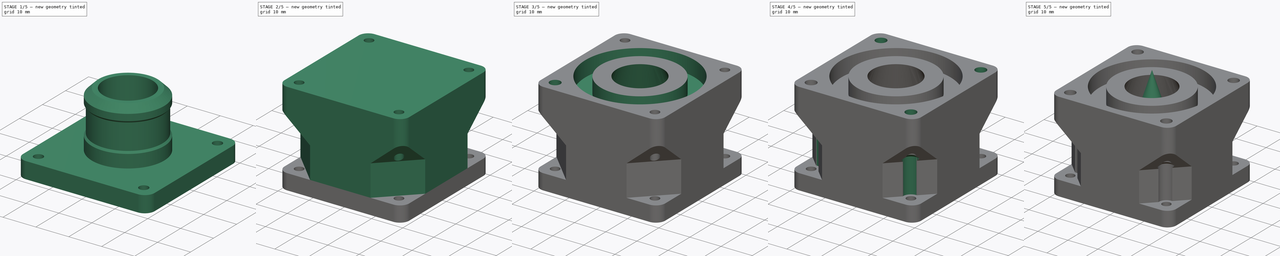
[diagram: build sequence overview — one tinted view per stage of 5, left to right]
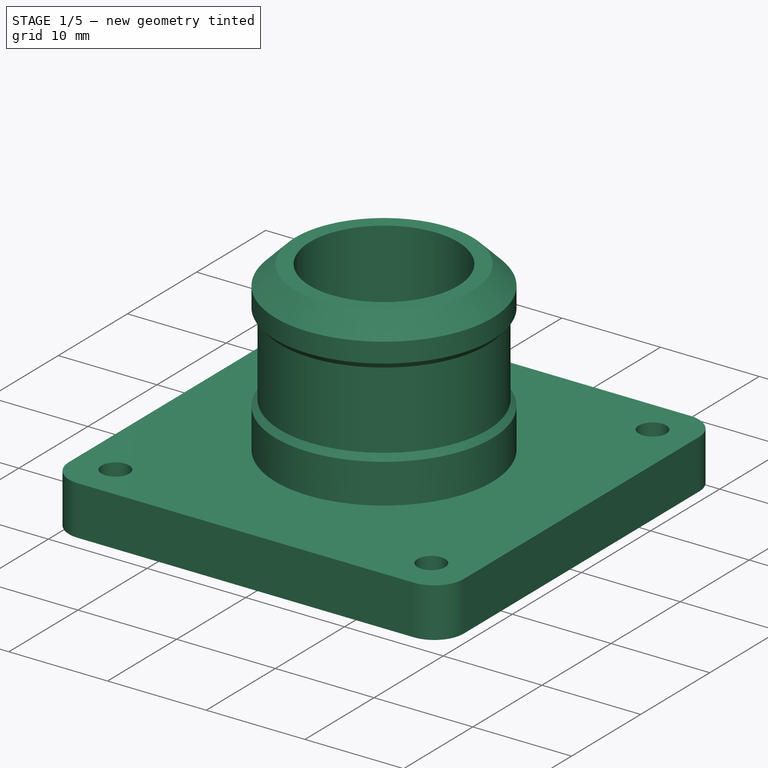
[diagram: stage 1 of 5 — iso view after this stage's code; geometry added in this stage tinted green]
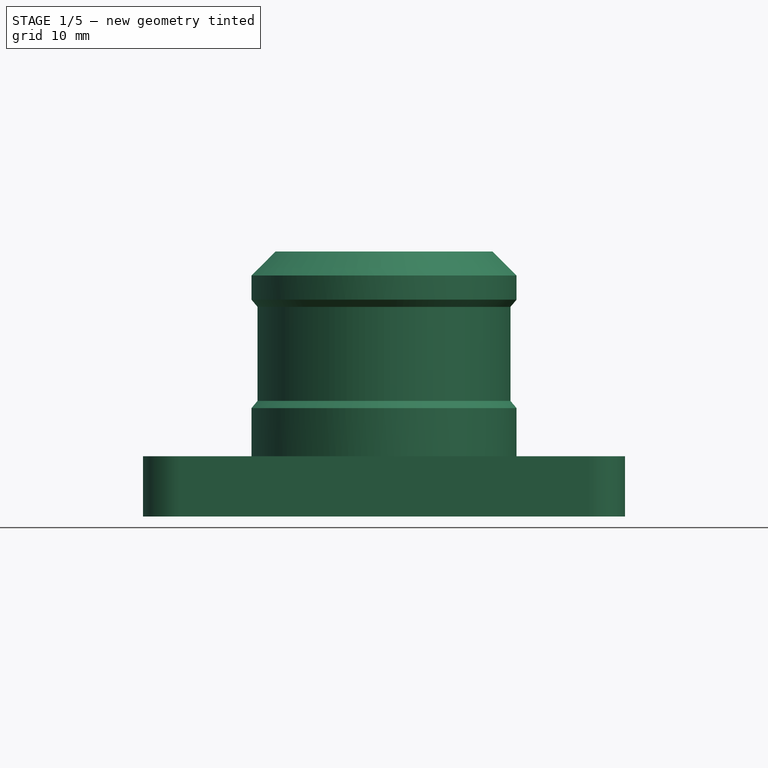
[diagram: stage 1 of 5 — front view after this stage's code; geometry added in this stage tinted green]
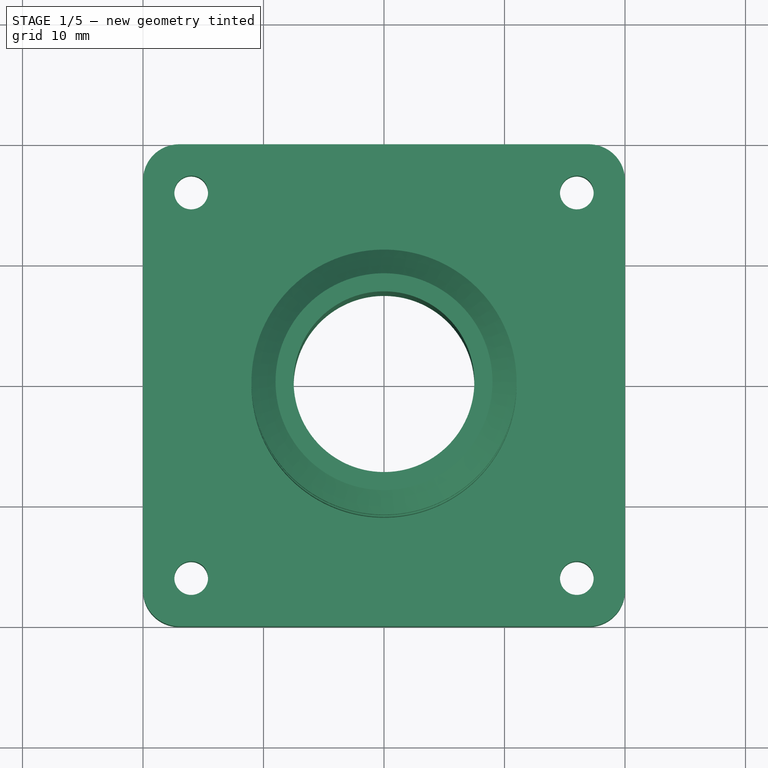
[diagram: stage 1 of 5 — top view after this stage's code; geometry added in this stage tinted green]
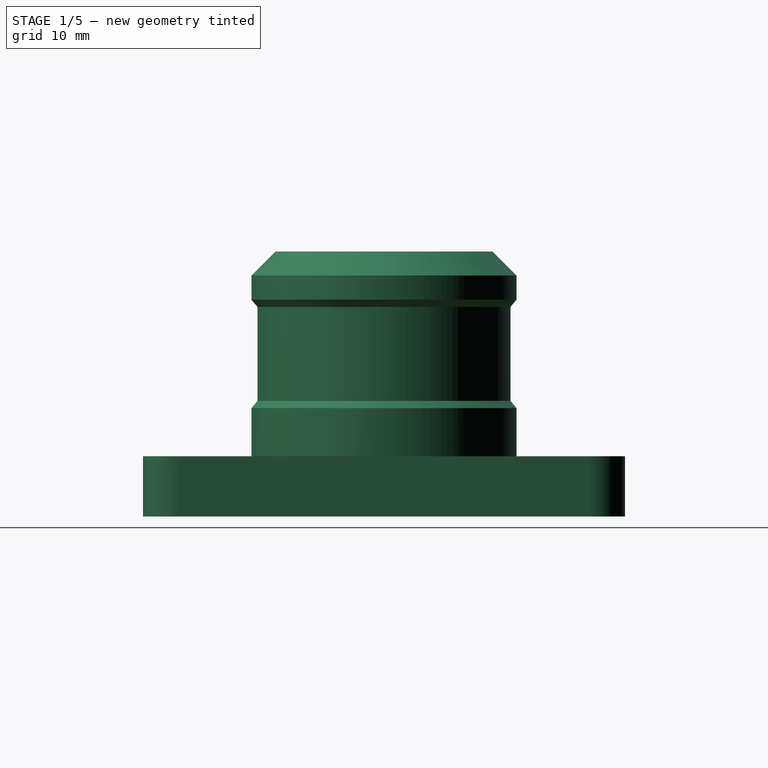
[diagram: stage 1 of 5 — right view after this stage's code; geometry added in this stage tinted green]
FCSTD DOCUMENT  (FreeCAD 0.21R33675 (Git))
Label: 4056-duct
License: All rights reserved
LicenseURL: http://en.wikipedia.org/wiki/All_rights_reserved
objects: Sketcher::SketchObject×12, PartDesign::Pad×4, PartDesign::Pocket×4, PartDesign::PolarPattern×4, PartDesign::Chamfer×4, PartDesign::Body×3, Spreadsheet::Sheet×1, PartDesign::Plane×1, PartDesign::Revolution×1, PartDesign::SubtractiveLoft×1, PartDesign::Groove×1
note: 50 computed .brp shape members not serialized (recipe doc carries the construction recipe); baked Part::Feature solids carry a one-line shape summary decoded from their .brp

FEATURE [Sketcher::SketchObject] Sketch008
  FullyConstrained = true
  MapMode = 5
  Support = -> [XY_Plane002]
  expr: Constraints[23] = <<args>>.outer_radius
  expr: Constraints[25] = <<args>>.pipe_inner_radius
  sketch-geometry (15):
    g0: ArcOfCircle CenterX=-17 CenterY=17 CenterZ=0 NormalX=0 NormalY=0 NormalZ=1 AngleXU=0 Radius=3 StartAngle=1.5708 EndAngle=3.14159
    g1: LineSegment StartX=-17 StartY=20 StartZ=0 EndX=17 EndY=20 EndZ=0
    g2: ArcOfCircle CenterX=17 CenterY=17 CenterZ=0 NormalX=0 NormalY=0 NormalZ=1 AngleXU=0 Radius=3 StartAngle=1.55e-14 EndAngle=1.5708
    g3: LineSegment StartX=20 StartY=17 StartZ=0 EndX=20 EndY=-17 EndZ=0
    g4: ArcOfCircle CenterX=17 CenterY=-17 CenterZ=0 NormalX=0 NormalY=0 NormalZ=1 AngleXU=0 Radius=3 StartAngle=4.71239 EndAngle=6.28319
    g5: LineSegment StartX=17 StartY=-20 StartZ=0 EndX=-17 EndY=-20 EndZ=0
    g6: ArcOfCircle CenterX=-17 CenterY=-17 CenterZ=0 NormalX=0 NormalY=0 NormalZ=1 AngleXU=0 Radius=3 StartAngle=3.14159 EndAngle=4.71239
    g7: LineSegment StartX=-20 StartY=-17 StartZ=0 EndX=-20 EndY=17 EndZ=0
    g8: GeomPoint X=-20 Y=20 Z=0
    g9: GeomPoint X=20 Y=-20 Z=0
    g10: Circle CenterX=0 CenterY=0 CenterZ=0 NormalX=0 NormalY=0 NormalZ=1 AngleXU=0 Radius=7.5
    g11: Circle CenterX=-16 CenterY=16 CenterZ=0 NormalX=0 NormalY=0 NormalZ=1 AngleXU=0 Radius=1.4
    g12: Circle CenterX=16 CenterY=16 CenterZ=0 NormalX=0 NormalY=0 NormalZ=1 AngleXU=0 Radius=1.4
    g13: Circle CenterX=16 CenterY=-16 CenterZ=0 NormalX=0 NormalY=0 NormalZ=1 AngleXU=0 Radius=1.4
    g14: Circle CenterX=-16 CenterY=-16 CenterZ=0 NormalX=0 NormalY=0 NormalZ=1 AngleXU=0 Radius=1.4
  constraints (38):
    c: Tangent(g0,g1) = 1.5708
    c: Tangent(g1,g2) = 1.5708
    c: Tangent(g2,g3) = 1.5708
    c: Tangent(g3,g4) = 1.5708
    c: Tangent(g4,g5) = 1.5708
    c: Tangent(g5,g6) = 1.5708
    c: Tangent(g6,g7) = 1.5708
    c: Tangent(g7,g0) = 1.5708
    c: Horizontal(g1)
    c: Horizontal(g5)
    c: Vertical(g3)
    c: Vertical(g7)
    c: Equal(g0,g2)
    c: Equal(g2,g4)
    c: Equal(g4,g6)
    c: PointOnObject(g8,g1)
    c: PointOnObject(g8,g7)
    c: PointOnObject(g9,g3)
    c: PointOnObject(g9,g5)
    c: DistanceX(g0,g2) = 40
    c: DistanceX(g0,g-1) = 20
    c: DistanceY(g5,g0) = 40
    c: DistanceY(g5,g-1) = 20
    c: Radius(g2) = 3
    c: Coincident(g10,g-1)
    c: Radius(g10) = 7.5
    c: Horizontal(g14,g13)
    c: Horizontal(g11,g12)
    c: Vertical(g11,g14)
    c: Vertical(g12,g13)
    c: DistanceX(g11,g12) = 32
    c: DistanceX(g11,g10) = 16
    c: DistanceY(g14,g11) = 32
    c: DistanceY(g14,g10) = 16
    c: Radius(g11) = 1.4
    c: Equal(g12,g11)
    c: Equal(g14,g13)
    c: Equal(g13,g12)
FEATURE [PartDesign::Pad] Pad002
  Direction = (0,0,1)
  Length = 5
  Length2 = 10
  Profile = -> Sketch008
  ReferenceAxis = -> Sketch008 [N_Axis]
  Type = 0
FEATURE [Sketcher::SketchObject] Sketch009
  ExternalGeometry = -> [Pad002]
  FullyConstrained = true
  MapMode = 5
  Placement = pos=(0,0,5) rot=(0,0,1;0rad)
  Support = -> [Pad002]
  expr: Constraints[3] = <<args>>.pipe_outer_radius
  sketch-geometry (2):
    g0: Circle CenterX=0 CenterY=0 CenterZ=0 NormalX=0 NormalY=0 NormalZ=1 AngleXU=0 Radius=7.5
    g1: Circle CenterX=0 CenterY=0 CenterZ=0 NormalX=0 NormalY=0 NormalZ=1 AngleXU=0 Radius=11
  constraints (4):
    c: Coincident(g0,g-3)
    c: Coincident(g1,g0)
    c: Equal(g0,g-3)
    c: Radius(g1) = 11
FEATURE [PartDesign::Pad] Pad003
  BaseFeature = -> Pad002
  Direction = (0,0,1)
  Length = 17
  Length2 = 10
  Profile = -> Sketch009
  ReferenceAxis = -> Sketch009 [N_Axis]
  Type = 0
  expr: Length = <<args>>.pipe_height
FEATURE [Sketcher::SketchObject] Sketch010
  ExternalGeometry = -> [Pad003]
  FullyConstrained = true
  MapMode = 5
  Placement = pos=(0,0,0) rot=(0.57735,0.57735,0.57735;2.0944rad)
  Support = -> [YZ_Plane002]
  sketch-geometry (4):
    g0: LineSegment StartX=-11 StartY=18 StartZ=0 EndX=-10.5 EndY=17.4041 EndZ=0
    g1: LineSegment StartX=-10.5 StartY=17.4041 StartZ=0 EndX=-10.5 EndY=9.59588 EndZ=0
    g2: LineSegment StartX=-10.5 StartY=9.59588 StartZ=0 EndX=-11 EndY=9 EndZ=0
    g3: LineSegment StartX=-11 StartY=9 StartZ=0 EndX=-11 EndY=18 EndZ=0
  constraints (12):
    c: Coincident(g0,g1)
    c: Vertical(g1)
    c: Coincident(g1,g2)
    c: Coincident(g2,g3)
    c: Coincident(g3,g0)
    c: Vertical(g3)
    c: DistanceY(g-4,g2) = 4
    c: DistanceY(g0,g-3) = 4
    c: Vertical(g0,g-3)
    c: DistanceX(g0,g0) = 0.5
    c: Angle(g2,g3) = 0.698132
    c: Angle(g3,g0) = 0.698132
FEATURE [PartDesign::Groove] Groove
  Angle = 360
  Axis = (-2e-16,3e-16,1)
  Base = (0,0,0)
  BaseFeature = -> Pad003
  Profile = -> Sketch010
  ReferenceAxis = -> Sketch010 [V_Axis]
  Reversed = true
FEATURE [PartDesign::Chamfer] Chamfer001
  Angle = 45
  Base = -> Groove [Edge48]
  BaseFeature = -> Groove
  ChamferType = 0
  FlipDirection = false
  Size = 2
  Size2 = 1
  SupportTransform = false
  UseAllEdges = false
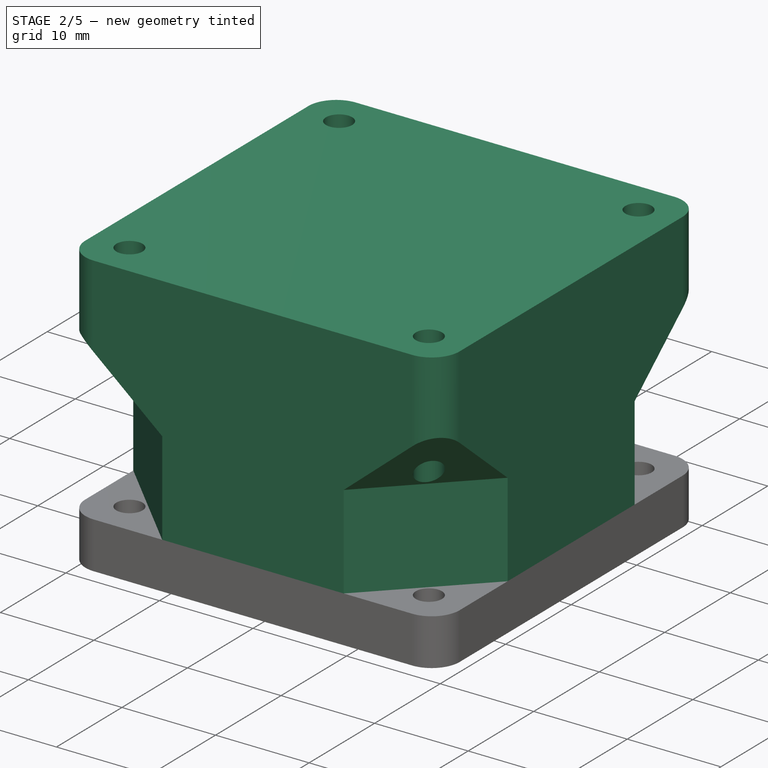
[diagram: stage 2 of 5 — iso view after this stage's code; geometry added in this stage tinted green]
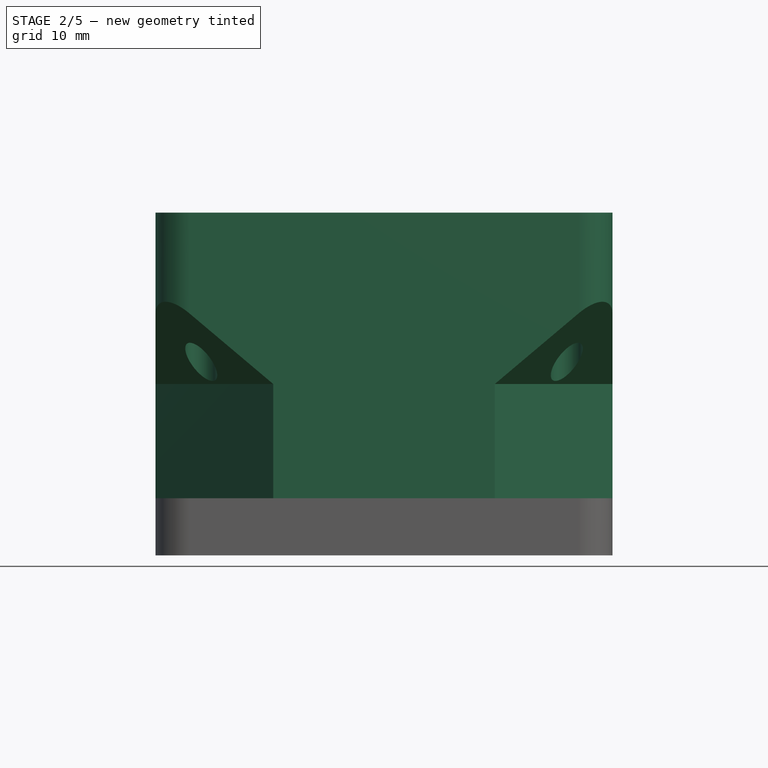
[diagram: stage 2 of 5 — front view after this stage's code; geometry added in this stage tinted green]
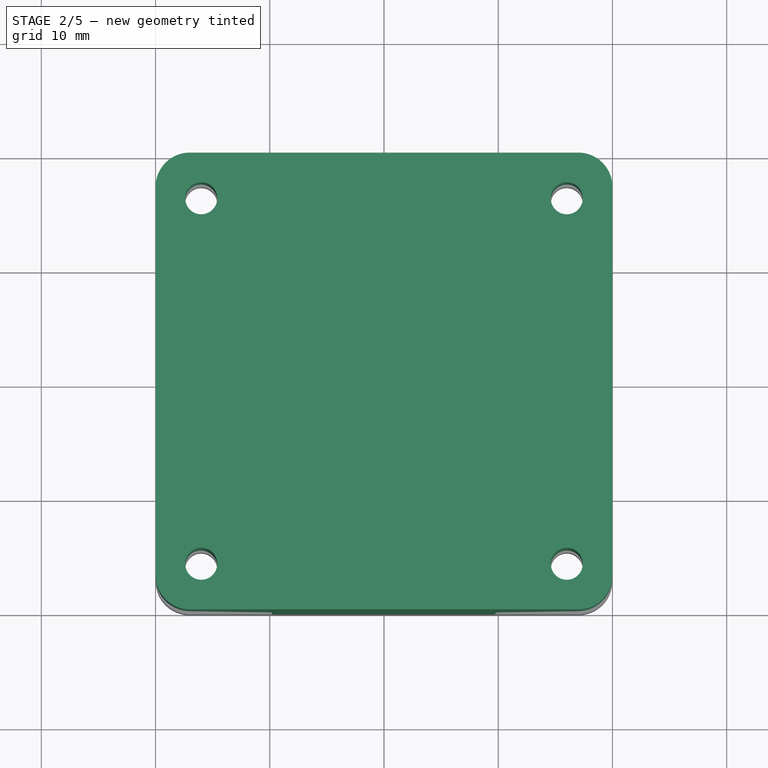
[diagram: stage 2 of 5 — top view after this stage's code; geometry added in this stage tinted green]
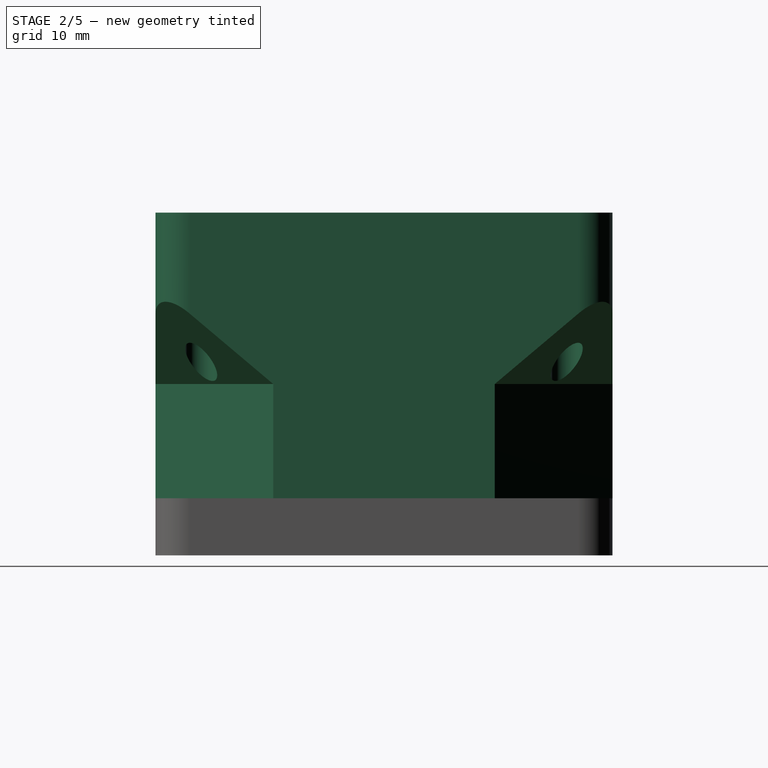
[diagram: stage 2 of 5 — right view after this stage's code; geometry added in this stage tinted green]
FEATURE [Spreadsheet::Sheet] Spreadsheet  label="args"
  cells = A2='outer_radius; B2(outer_radius)=3; A3='duct_height; B3(duct_height)=30; A4='inner_radius; B4(inner_radius)=16; A5='inner_width; B5(inner_width)=38; A7='corn_width; B7(corn_width)=22; A8='corn_height; B8(corn_height)=35; A9='pipe_inner_radius; B9(pipe_inner_radius)=7.5; A10='corn_blade_angle; B10(corn_blade_angle)=-10; A11='corn_bdale_heigh; B11(corn_bdale_heigh)=25; A12='corn_blade_width; B12(corn_blade_width)=0.75; A13='pipe_outer_radius; B13(pipe_outer_radius)=11; A14='pipe_height; B14(pipe_height)=17
FEATURE [Sketcher::SketchObject] Sketch
  FullyConstrained = false
  MapMode = 5
  Support = -> [XY_Plane]
  expr: Constraints[23] = <<args>>.outer_radius
  expr: Constraints[35] = 2.5 / 2 + 0.15
  sketch-geometry (16):
    g0: ArcOfCircle CenterX=-17 CenterY=17 CenterZ=0 NormalX=0 NormalY=0 NormalZ=1 AngleXU=0 Radius=3 StartAngle=1.5708 EndAngle=3.14159
    g1: LineSegment StartX=-17 StartY=20 StartZ=0 EndX=17 EndY=20 EndZ=0
    g2: ArcOfCircle CenterX=17 CenterY=17 CenterZ=0 NormalX=0 NormalY=0 NormalZ=1 AngleXU=0 Radius=3 StartAngle=0 EndAngle=1.5708
    g3: LineSegment StartX=20 StartY=17 StartZ=0 EndX=20 EndY=-17 EndZ=0
    g4: ArcOfCircle CenterX=17 CenterY=-17 CenterZ=0 NormalX=0 NormalY=0 NormalZ=1 AngleXU=0 Radius=3 StartAngle=4.71239 EndAngle=6.28319
    g5: LineSegment StartX=17 StartY=-20 StartZ=0 EndX=-17 EndY=-20 EndZ=0
    g6: ArcOfCircle CenterX=-17 CenterY=-17 CenterZ=0 NormalX=0 NormalY=0 NormalZ=1 AngleXU=0 Radius=3 StartAngle=3.14159 EndAngle=4.71239
    g7: LineSegment StartX=-20 StartY=-17 StartZ=0 EndX=-20 EndY=17 EndZ=0
    g8: GeomPoint X=-20 Y=20 Z=0
    g9: GeomPoint X=20 Y=-20 Z=0
    g10: GeomPoint X=-19 Y=19 Z=0
    g11: GeomPoint X=19 Y=-19 Z=0
    g12: Circle CenterX=-16 CenterY=16 CenterZ=0 NormalX=0 NormalY=0 NormalZ=1 AngleXU=0 Radius=1.4
    g13: Circle CenterX=16 CenterY=16 CenterZ=0 NormalX=0 NormalY=0 NormalZ=1 AngleXU=0 Radius=1.4
    g14: Circle CenterX=-16 CenterY=-16 CenterZ=0 NormalX=0 NormalY=0 NormalZ=1 AngleXU=0 Radius=1.4
    g15: Circle CenterX=16 CenterY=-16 CenterZ=0 NormalX=0 NormalY=0 NormalZ=1 AngleXU=0 Radius=1.4
  constraints (36):
    c: Tangent(g0,g1) = 1.5708
    c: Tangent(g1,g2) = 1.5708
    c: Tangent(g2,g3) = 1.5708
    c: Tangent(g3,g4) = 1.5708
    c: Tangent(g4,g5) = 1.5708
    c: Tangent(g5,g6) = 1.5708
    c: Tangent(g6,g7) = 1.5708
    c: Tangent(g7,g0) = 1.5708
    c: Horizontal(g1)
    c: Horizontal(g5)
    c: Vertical(g3)
    c: Vertical(g7)
    c: Equal(g0,g2)
    c: Equal(g2,g4)
    c: Equal(g4,g6)
    c: PointOnObject(g8,g1)
    c: PointOnObject(g8,g7)
    c: PointOnObject(g9,g3)
    c: PointOnObject(g9,g5)
    c: DistanceX(g0,g2) = 40
    c: DistanceX(g0,g-1) = 20
    c: DistanceY(g-1,g0) = 20
    c: DistanceY(g5,g0) = 40
    c: Radius(g2) = 3
    c: Equal(g15,g14)
    c: Equal(g14,g12)
    c: Equal(g12,g13)
    c: Horizontal(g12,g13)
    c: Horizontal(g14,g15)
    c: Vertical(g14,g12)
    c: Vertical(g15,g13)
    c: DistanceX(g12,g13) = 32
    c: DistanceX(g12,g-1) = 16
    c: DistanceY(g-1,g12) = 16
    c: DistanceY(g14,g12) = 32
    c: Radius(g13) = 1.4
FEATURE [PartDesign::Pad] Pad
  Direction = (0,0,1)
  Length = 30
  Length2 = 10
  Profile = -> Sketch
  ReferenceAxis = -> Sketch [N_Axis]
  Type = 0
  expr: Length = <<args>>.duct_height
FEATURE [PartDesign::Plane] DatumPlane
  AttachmentOffset = pos=(0,0,0) rot=(0,1,0;0.785398rad)
  Length = 83.1832
  MapMode = 5
  Placement = pos=(0,0,0) rot=(0.281085,0.678598,0.678598;2.59356rad)
  ResizeMode = 0
  Support = -> [YZ_Plane]
  Width = 67.4725
FEATURE [Sketcher::SketchObject] Sketch001
  FullyConstrained = true
  MapMode = 5
  Placement = pos=(0,0,0) rot=(0.281085,0.678598,0.678598;2.59356rad)
  Support = -> [DatumPlane]
  sketch-geometry (4):
    g0: LineSegment StartX=-27.5 StartY=5 StartZ=0 EndX=-21 EndY=5 EndZ=0
    g1: LineSegment StartX=-21 StartY=5 StartZ=0 EndX=-21 EndY=15 EndZ=0
    g2: LineSegment StartX=-21 StartY=15 StartZ=0 EndX=-27.5 EndY=22.7464 EndZ=0
    g3: LineSegment StartX=-27.5 StartY=22.7464 StartZ=0 EndX=-27.5 EndY=5 EndZ=0
  constraints (12):
    c: Horizontal(g0)
    c: Coincident(g0,g1)
    c: Vertical(g1)
    c: Coincident(g1,g2)
    c: Coincident(g2,g3)
    c: Coincident(g3,g0)
    c: Vertical(g3)
    c: DistanceY(g-1,g0) = 5
    c: DistanceX(g0,g-1) = 27.5
    c: DistanceX(g0,g-1) = 21
    c: Angle(g2,g1) = 2.44346
    c: DistanceY(g1,g1) = 10
FEATURE [PartDesign::Pocket] Pocket  label="corner-cut"
  BaseFeature = -> Pad
  Direction = (-0.707107,-0.707107,-1e-16)
  Length = 5
  Length2 = 5
  Midplane = true
  Profile = -> Sketch001
  ReferenceAxis = -> Sketch001 [N_Axis]
  Type = 1
FEATURE [PartDesign::PolarPattern] PolarPattern
  Angle = 360
  Axis = -> Sketch001 [V_Axis]
  BaseFeature = -> Pocket
  Occurrences = 4
  Originals = -> [Pocket]
FEATURE [PartDesign::Body] Body  label="outer-duct"
  Group = -> [Sketch,Pad,DatumPlane,Sketch001,Pocket,PolarPattern,Sketch003,Sketch004,SubtractiveLoft,Sketch006,Pocket001,Sketch007,Pocket002,PolarPattern002,Sketch011,Pocket003,PolarPattern003,Chamfer002]
  Origin = -> Origin
  Tip = -> Chamfer002
FEATURE [PartDesign::Chamfer] Chamfer003
  Angle = 45
  Base = -> Chamfer001 [Edge55]
  BaseFeature = -> Chamfer001
  ChamferType = 0
  FlipDirection = false
  Size = 1.5
  Size2 = 1
  SupportTransform = false
  UseAllEdges = false
FEATURE [PartDesign::Body] Body002  label="pipe-mounter"
  Group = -> [Sketch008,Pad002,Sketch009,Pad003,Sketch010,Groove,Chamfer001,Chamfer003]
  Origin = -> Origin002
  Placement = pos=(0,0,30) rot=(0,0,1;0rad)
  Tip = -> Chamfer003
  expr: .Placement.Base.z = <<args>>.duct_height
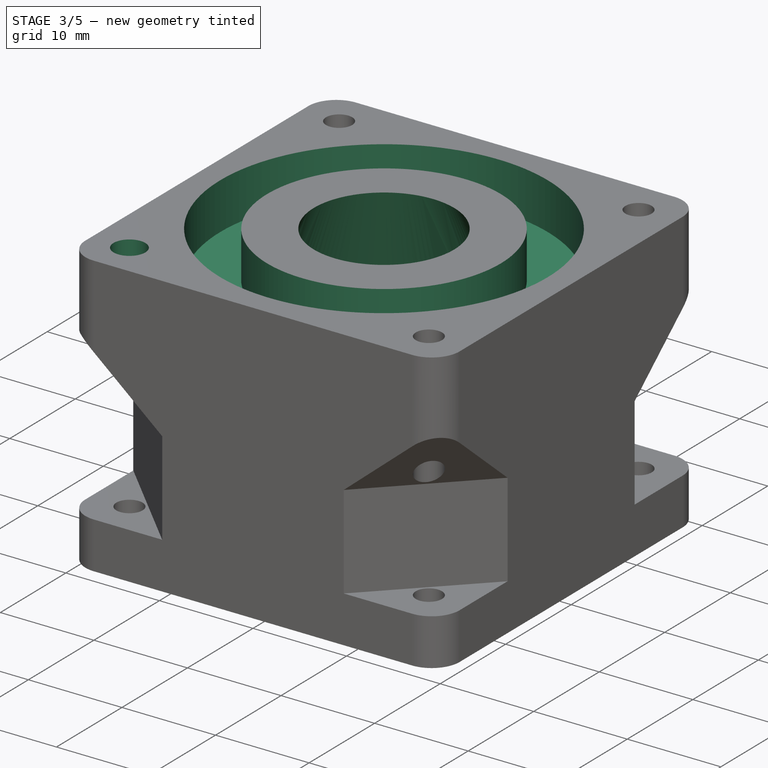
[diagram: stage 3 of 5 — iso view after this stage's code; geometry added in this stage tinted green]
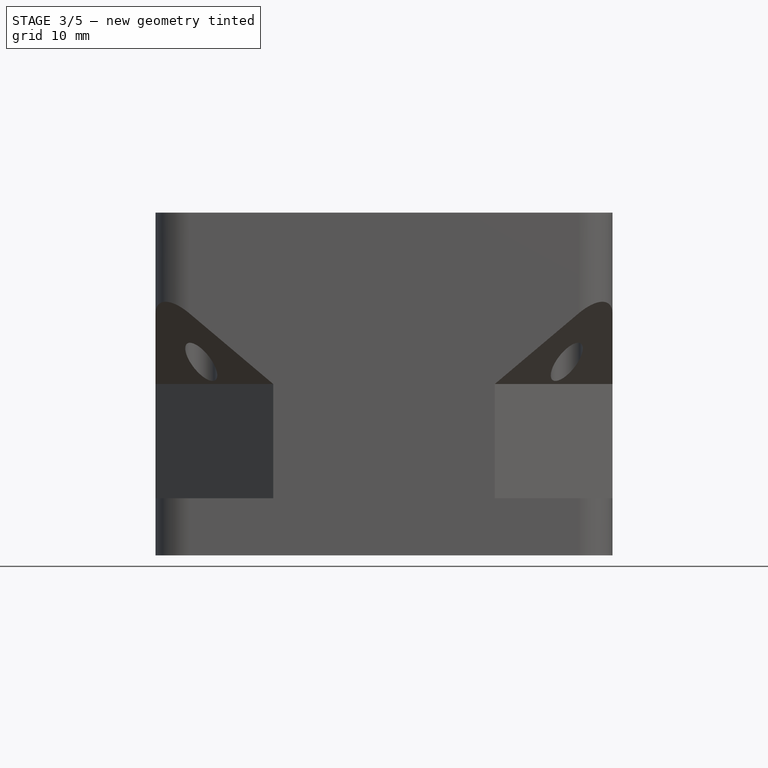
[diagram: stage 3 of 5 — front view after this stage's code; geometry added in this stage tinted green]
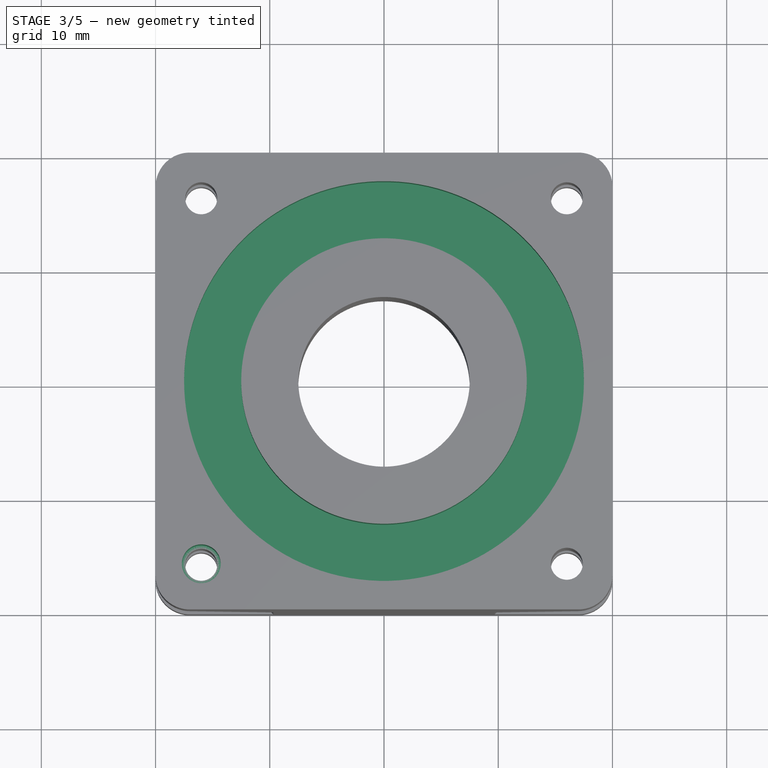
[diagram: stage 3 of 5 — top view after this stage's code; geometry added in this stage tinted green]
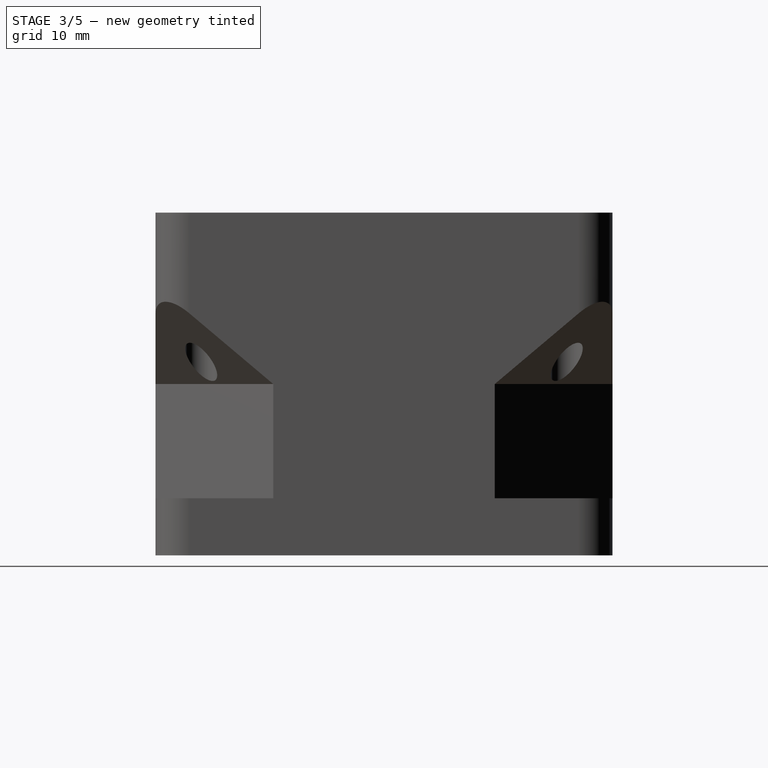
[diagram: stage 3 of 5 — right view after this stage's code; geometry added in this stage tinted green]
FEATURE [Sketcher::SketchObject] Sketch003
  FullyConstrained = true
  MapMode = 5
  Placement = pos=(0,0,0) rot=(1,0,0;3.14159rad)
  Support = -> [PolarPattern]
  expr: Constraints[19] = <<args>>.inner_width
  expr: Constraints[20] = <<args>>.inner_width / 2
  expr: Constraints[21] = <<args>>.inner_width / 2
  expr: Constraints[22] = <<args>>.inner_width
  expr: Constraints[23] = <<args>>.inner_radius
  sketch-geometry (10):
    g0: ArcOfCircle CenterX=-3 CenterY=3 CenterZ=0 NormalX=0 NormalY=0 NormalZ=1 AngleXU=0 Radius=16 StartAngle=1.5708 EndAngle=3.14159
    g1: LineSegment StartX=-3 StartY=19 StartZ=0 EndX=3 EndY=19 EndZ=0
    g2: ArcOfCircle CenterX=3 CenterY=3 CenterZ=0 NormalX=0 NormalY=0 NormalZ=1 AngleXU=0 Radius=16 StartAngle=1e-16 EndAngle=1.5708
    g3: LineSegment StartX=19 StartY=3 StartZ=0 EndX=19 EndY=-3 EndZ=0
    g4: ArcOfCircle CenterX=3 CenterY=-3 CenterZ=0 NormalX=0 NormalY=0 NormalZ=1 AngleXU=0 Radius=16 StartAngle=4.71239 EndAngle=6.28319
    g5: LineSegment StartX=3 StartY=-19 StartZ=0 EndX=-3 EndY=-19 EndZ=0
    g6: ArcOfCircle CenterX=-3 CenterY=-3 CenterZ=0 NormalX=0 NormalY=0 NormalZ=1 AngleXU=0 Radius=16 StartAngle=3.14159 EndAngle=4.71239
    g7: LineSegment StartX=-19 StartY=-3 StartZ=0 EndX=-19 EndY=3 EndZ=0
    g8: GeomPoint X=-19 Y=19 Z=0
    g9: GeomPoint X=19 Y=-19 Z=0
  constraints (24):
    c: Tangent(g0,g1) = 1.5708
    c: Tangent(g1,g2) = 1.5708
    c: Tangent(g2,g3) = 1.5708
    c: Tangent(g3,g4) = 1.5708
    c: Tangent(g4,g5) = 1.5708
    c: Tangent(g5,g6) = 1.5708
    c: Tangent(g6,g7) = 1.5708
    c: Tangent(g7,g0) = 1.5708
    c: Horizontal(g1)
    c: Horizontal(g5)
    c: Vertical(g3)
    c: Vertical(g7)
    c: Equal(g0,g2)
    c: Equal(g2,g4)
    c: Equal(g4,g6)
    c: PointOnObject(g8,g1)
    c: PointOnObject(g8,g7)
    c: PointOnObject(g9,g3)
    c: PointOnObject(g9,g5)
    c: DistanceX(g0,g2) = 38
    c: DistanceX(g0,g-1) = 19
    c: DistanceY(g-1,g1) = 19
    c: DistanceY(g4,g1) = 38
    c: Radius(g2) = 16
FEATURE [Sketcher::SketchObject] Sketch004
  FullyConstrained = true
  MapMode = 5
  Placement = pos=(0,0,30) rot=(0,0,1;0rad)
  Support = -> [PolarPattern]
  expr: Constraints[1] = <<args>>.pipe_inner_radius
  sketch-geometry (1):
    g0: Circle CenterX=0 CenterY=0 CenterZ=0 NormalX=0 NormalY=0 NormalZ=1 AngleXU=0 Radius=7.5
  constraints (2):
    c: Coincident(g0,g-1)
    c: Radius(g0) = 7.5
FEATURE [PartDesign::SubtractiveLoft] SubtractiveLoft
  BaseFeature = -> PolarPattern
  Closed = false
  Profile = -> Sketch003
  Ruled = false
  Sections = -> [Sketch004]
FEATURE [PartDesign::Body] Body001  label="corn"
  Group = -> [Sketch002,Revolution,Chamfer,Sketch005,Pad001,PolarPattern001]
  Origin = -> Origin001
  Tip = -> PolarPattern001
FEATURE [Sketcher::SketchObject] Sketch006
  FullyConstrained = true
  MapMode = 5
  Placement = pos=(0,0,30) rot=(0,0,1;0rad)
  Support = -> [SubtractiveLoft]
  sketch-geometry (2):
    g0: Circle CenterX=0 CenterY=0 CenterZ=0 NormalX=0 NormalY=0 NormalZ=1 AngleXU=0 Radius=17.5
    g1: Circle CenterX=0 CenterY=0 CenterZ=0 NormalX=0 NormalY=0 NormalZ=1 AngleXU=0 Radius=12.5
  constraints (4):
    c: Coincident(g0,g-1)
    c: Coincident(g1,g0)
    c: Radius(g1) = 12.5
    c: Radius(g0) = 17.5
FEATURE [PartDesign::Pocket] Pocket001
  BaseFeature = -> SubtractiveLoft
  Direction = (0,0,-1)
  Length = 5
  Length2 = 5
  Profile = -> Sketch006
  ReferenceAxis = -> Sketch006 [N_Axis]
  Type = 0
FEATURE [Sketcher::SketchObject] Sketch007
  ExternalGeometry = -> [Pocket001]
  FullyConstrained = true
  MapMode = 5
  Placement = pos=(0,0,30) rot=(0,0,1;0rad)
  Support = -> [Pocket001]
  sketch-geometry (1):
    g0: Circle CenterX=-16 CenterY=-16 CenterZ=0 NormalX=0 NormalY=0 NormalZ=1 AngleXU=0 Radius=1.7
  constraints (2):
    c: Coincident(g0,g-3)
    c: Radius(g0) = 1.7
FEATURE [PartDesign::Pocket] Pocket002
  BaseFeature = -> Pocket001
  Direction = (0,0,-1)
  Length = 5
  Length2 = 5
  Profile = -> Sketch007
  ReferenceAxis = -> Sketch007 [N_Axis]
  Type = 0
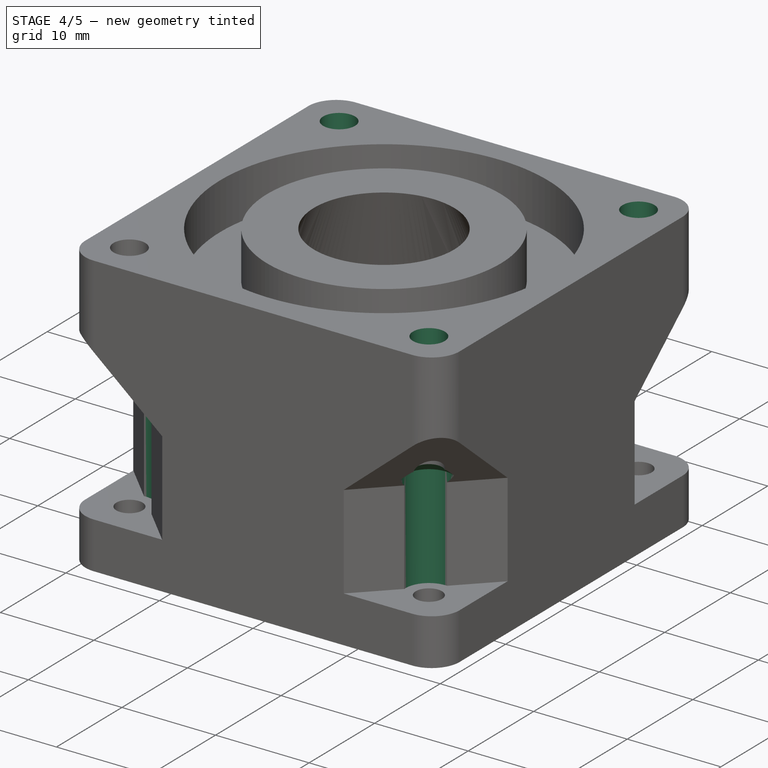
[diagram: stage 4 of 5 — iso view after this stage's code; geometry added in this stage tinted green]
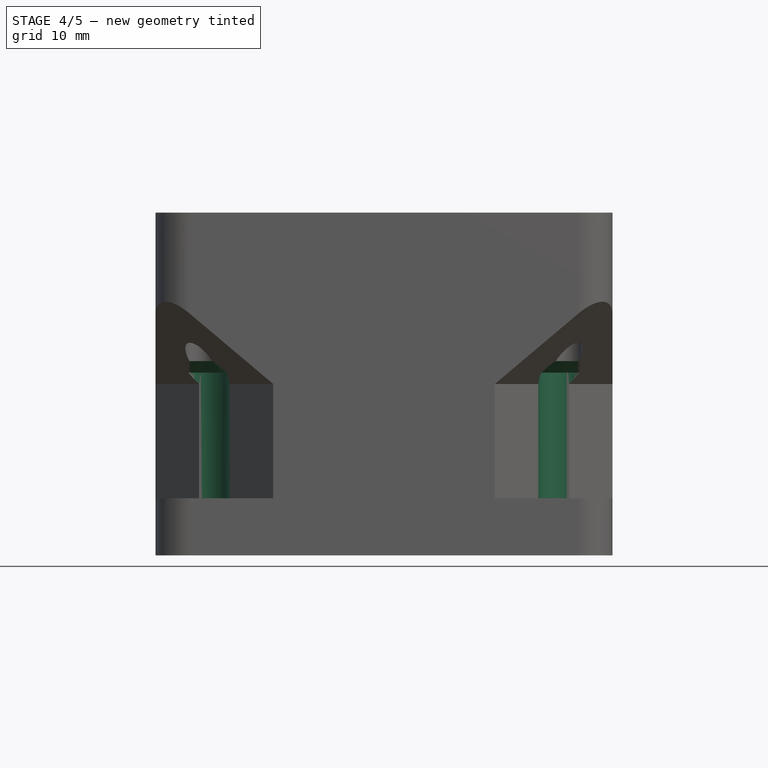
[diagram: stage 4 of 5 — front view after this stage's code; geometry added in this stage tinted green]
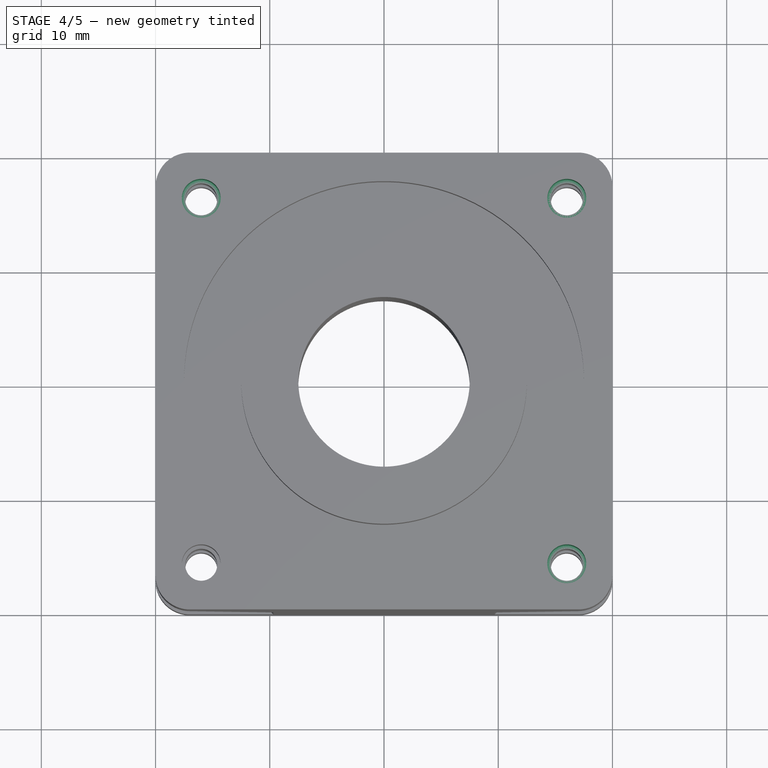
[diagram: stage 4 of 5 — top view after this stage's code; geometry added in this stage tinted green]
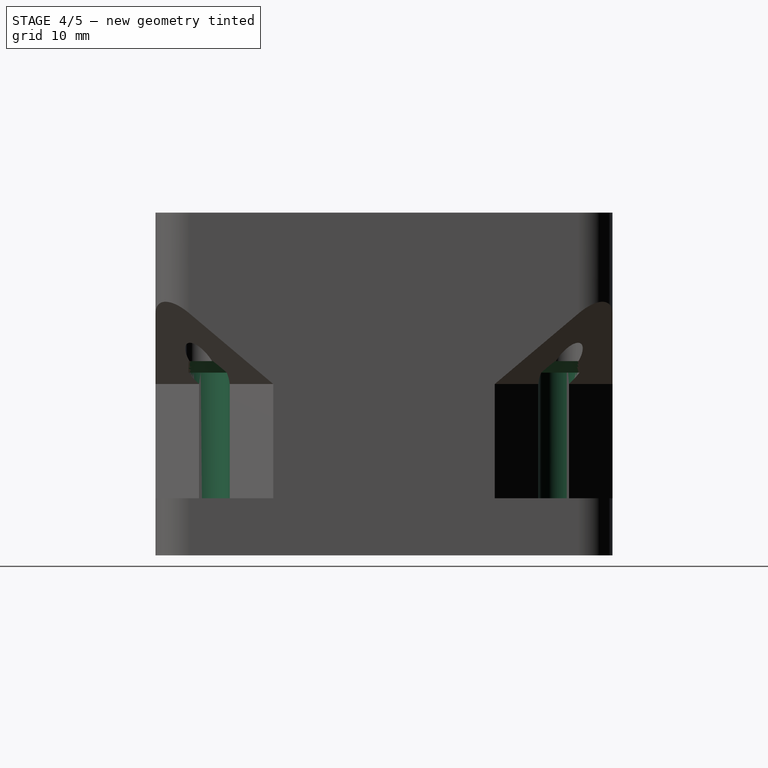
[diagram: stage 4 of 5 — right view after this stage's code; geometry added in this stage tinted green]
FEATURE [PartDesign::PolarPattern] PolarPattern002
  Angle = 360
  Axis = -> Sketch007 [N_Axis]
  BaseFeature = -> Pocket002
  Occurrences = 4
  Originals = -> [Pocket002]
FEATURE [Sketcher::SketchObject] Sketch011
  ExternalGeometry = -> [PolarPattern002]
  FullyConstrained = true
  MapMode = 5
  Placement = pos=(-1.4e-15,6e-16,5) rot=(0,0,1;0rad)
  Support = -> [PolarPattern002]
  sketch-geometry (1):
    g0: Circle CenterX=-16 CenterY=-16 CenterZ=0 NormalX=0 NormalY=0 NormalZ=1 AngleXU=0 Radius=2.5
  constraints (2):
    c: Coincident(g0,g-3)
    c: Radius(g0) = 2.5
FEATURE [PartDesign::Pocket] Pocket003
  BaseFeature = -> PolarPattern002
  Direction = (3e-16,-1e-16,-1)
  Length = 12
  Length2 = 5
  Profile = -> Sketch011
  ReferenceAxis = -> Sketch011 [N_Axis]
  Reversed = true
  Type = 0
FEATURE [PartDesign::PolarPattern] PolarPattern003
  Angle = 360
  Axis = -> Sketch011 [N_Axis]
  BaseFeature = -> Pocket003
  Occurrences = 4
  Originals = -> [Pocket003]
FEATURE [PartDesign::Chamfer] Chamfer002
  Angle = 45
  Base = -> PolarPattern003 [Edge196,Edge201,Edge168,Edge184]
  BaseFeature = -> PolarPattern003
  ChamferType = 0
  FlipDirection = false
  Size = 1
  Size2 = 1
  SupportTransform = false
  UseAllEdges = false
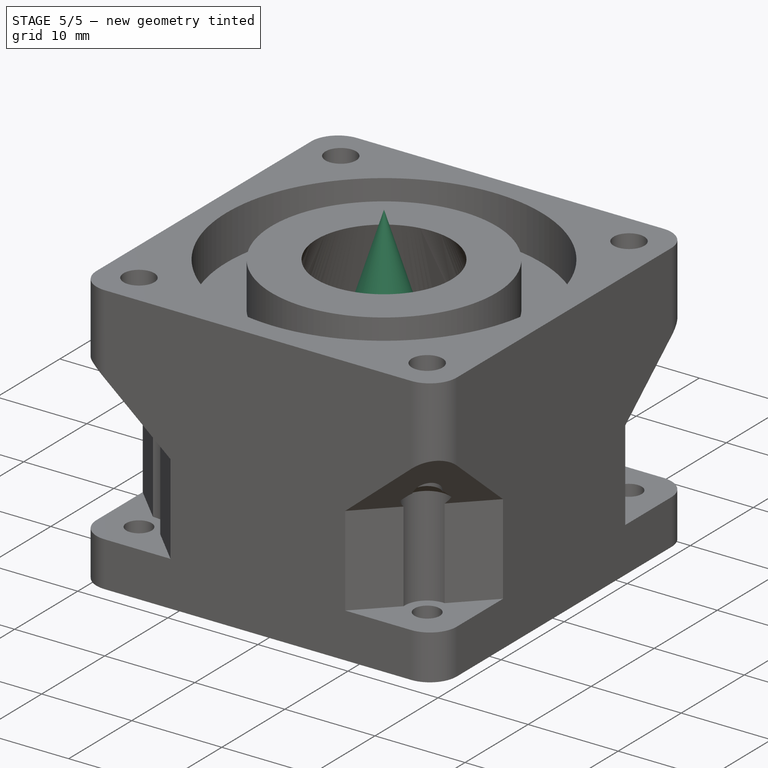
[diagram: stage 5 of 5 — iso view after this stage's code; geometry added in this stage tinted green]
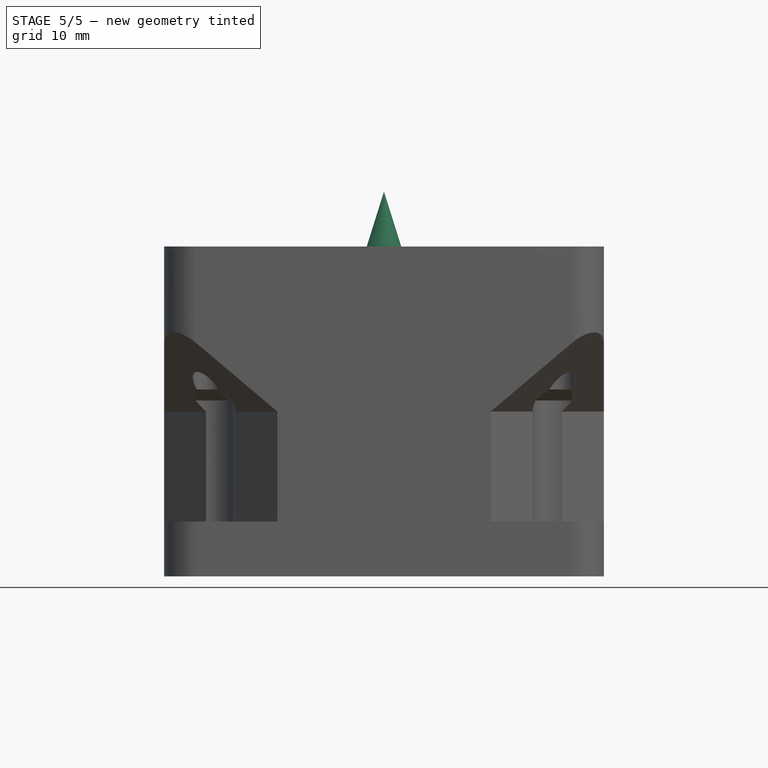
[diagram: stage 5 of 5 — front view after this stage's code; geometry added in this stage tinted green]
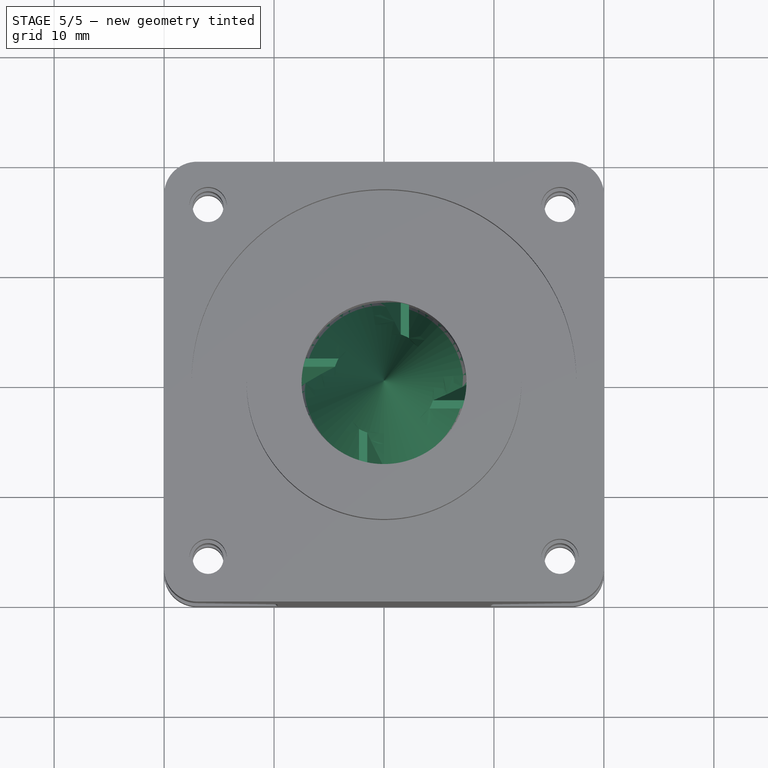
[diagram: stage 5 of 5 — top view after this stage's code; geometry added in this stage tinted green]
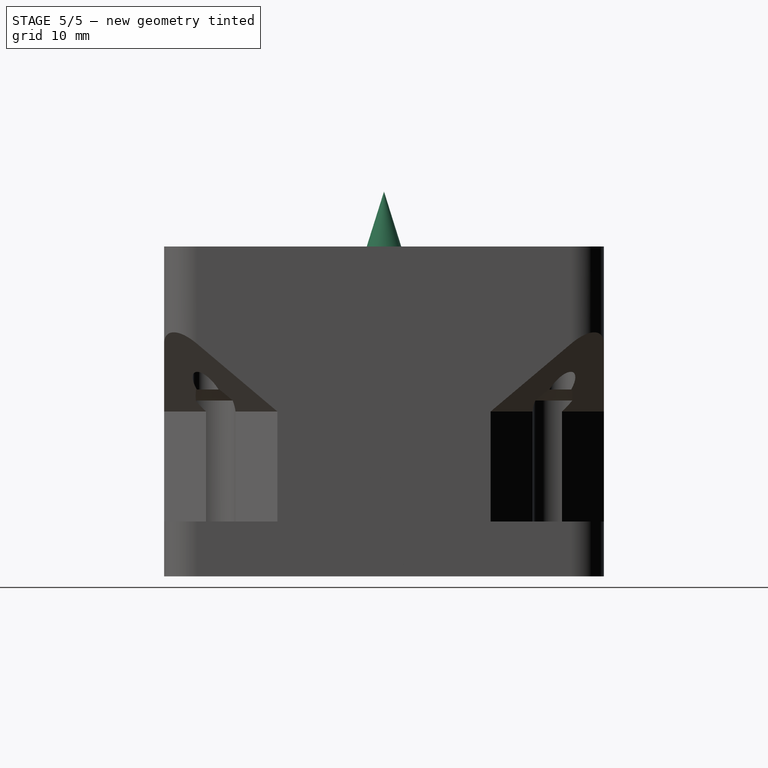
[diagram: stage 5 of 5 — right view after this stage's code; geometry added in this stage tinted green]
FEATURE [Sketcher::SketchObject] Sketch002
  FullyConstrained = true
  MapMode = 5
  Placement = pos=(0,0,0) rot=(0.57735,0.57735,0.57735;2.0944rad)
  Support = -> [YZ_Plane001]
  expr: Constraints[5] = <<args>>.corn_width / 2
  expr: Constraints[7] = <<args>>.corn_height
  sketch-geometry (3):
    g0: LineSegment StartX=0 StartY=35 StartZ=0 EndX=-11 EndY=0 EndZ=0
    g1: LineSegment StartX=-11 StartY=0 StartZ=0 EndX=0 EndY=0 EndZ=0
    g2: LineSegment StartX=0 StartY=0 StartZ=0 EndX=0 EndY=35 EndZ=0
  constraints (8):
    c: PointOnObject(g0,g-2)
    c: PointOnObject(g0,g-1)
    c: Coincident(g0,g1)
    c: Coincident(g1,g-1)
    c: Coincident(g1,g2)
    c: DistanceX(g1,g1) = 11
    c: Coincident(g0,g2)
    c: DistanceY(g2,g2) = 35
FEATURE [PartDesign::Revolution] Revolution
  Angle = 360
  Axis = (-2e-16,3e-16,1)
  Base = (0,0,0)
  Placement = pos=(0,0,0) rot=(1,1,1;2.0944rad)
  Profile = -> Sketch002
  ReferenceAxis = -> Sketch002 [V_Axis]
FEATURE [PartDesign::Chamfer] Chamfer
  Angle = 45
  Base = -> Revolution [Edge2]
  BaseFeature = -> Revolution
  ChamferType = 0
  FlipDirection = false
  Placement = pos=(0,0,0) rot=(1,1,1;2.0944rad)
  Size = 0.4
  Size2 = 1
  SupportTransform = false
  UseAllEdges = false
FEATURE [Sketcher::SketchObject] Sketch005
  FullyConstrained = true
  MapMode = 5
  Placement = pos=(0,0,0) rot=(0.57735,0.57735,0.57735;2.0944rad)
  Support = -> [YZ_Plane001]
  expr: Constraints[10] = 180 - <<args>>.corn_blade_angle
  expr: Constraints[8] = <<args>>.corn_blade_width
  expr: Constraints[9] = <<args>>.corn_bdale_heigh - 5
  sketch-geometry (4):
    g0: LineSegment StartX=1.25 StartY=0 StartZ=0 EndX=-2.27654 EndY=20 EndZ=0
    g1: LineSegment StartX=-2.27654 StartY=20 StartZ=0 EndX=-1.52654 EndY=20 EndZ=0
    g2: LineSegment StartX=-1.52654 StartY=20 StartZ=0 EndX=2 EndY=0 EndZ=0
    g3: LineSegment StartX=2 StartY=0 StartZ=0 EndX=1.25 EndY=0 EndZ=0
  constraints (12):
    c: PointOnObject(g0,g-1)
    c: Coincident(g0,g1)
    c: Horizontal(g1)
    c: Coincident(g1,g2)
    c: PointOnObject(g2,g-1)
    c: Coincident(g2,g3)
    c: Coincident(g3,g0)
    c: Parallel(g0,g2)
    c: DistanceX(g1,g1) = 0.75
    c: DistanceY(g2,g1) = 20
    c: Angle(g-2,g2) = 3.31613
    c: DistanceX(g2,g-1) = -2
FEATURE [PartDesign::Pad] Pad001
  BaseFeature = -> Chamfer
  Direction = (1,-2e-16,3e-16)
  Length = 19.5
  Length2 = 10
  Placement = pos=(0,0,0) rot=(1,1,1;2.0944rad)
  Profile = -> Sketch005
  ReferenceAxis = -> Sketch005 [N_Axis]
  Type = 0
  expr: Length = <<args>>.inner_width / 2 + 0.5
FEATURE [PartDesign::PolarPattern] PolarPattern001
  Angle = 360
  Axis = -> Sketch005 [V_Axis]
  BaseFeature = -> Pad001
  Occurrences = 4
  Originals = -> [Pad001]
  Placement = pos=(0,0,0) rot=(1,1,1;2.0944rad)
  Refine = true
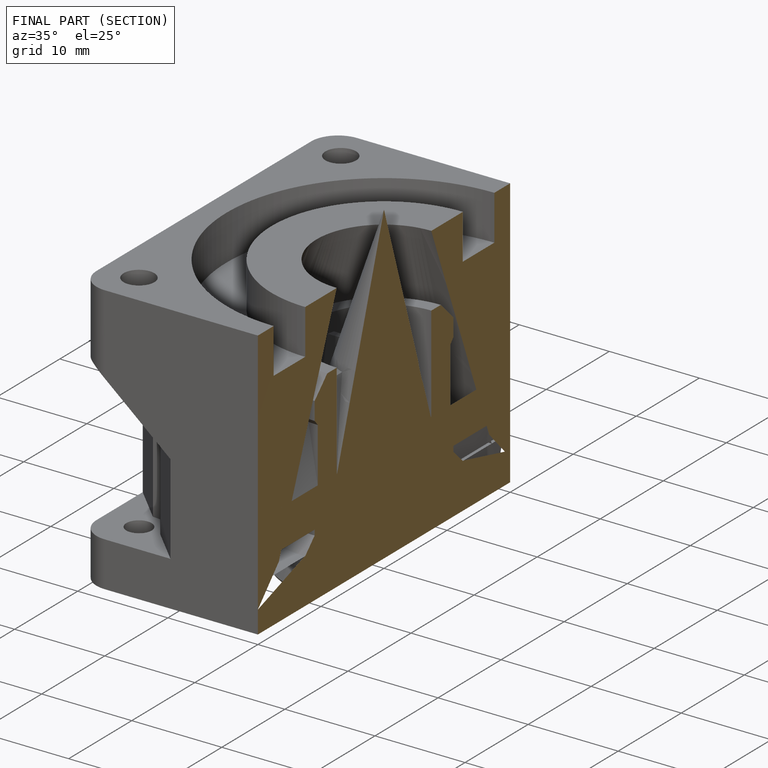
[diagram: finished part — half-section view (interior)]
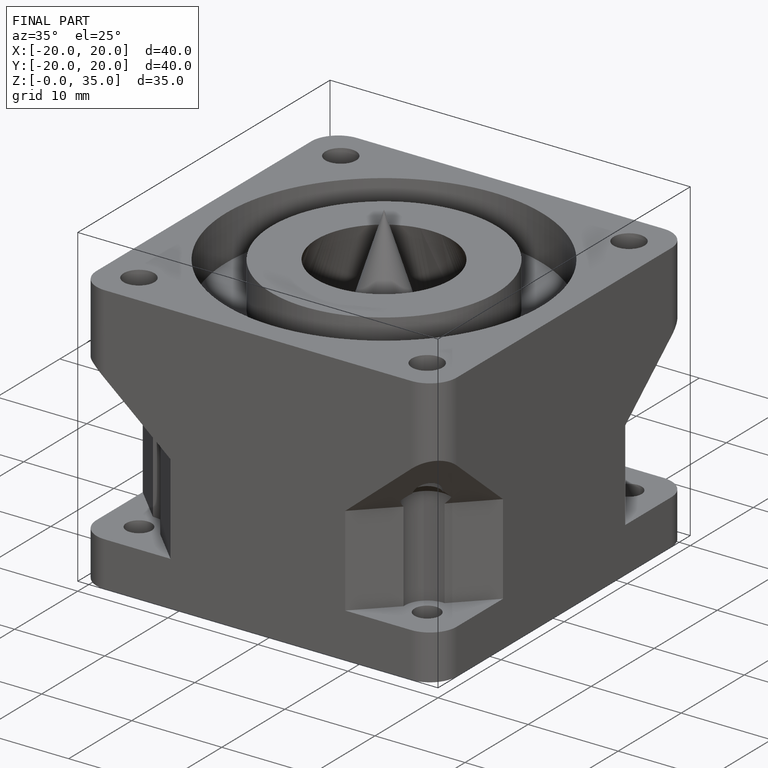
[diagram: finished part — iso view with bounding-box wireframe]
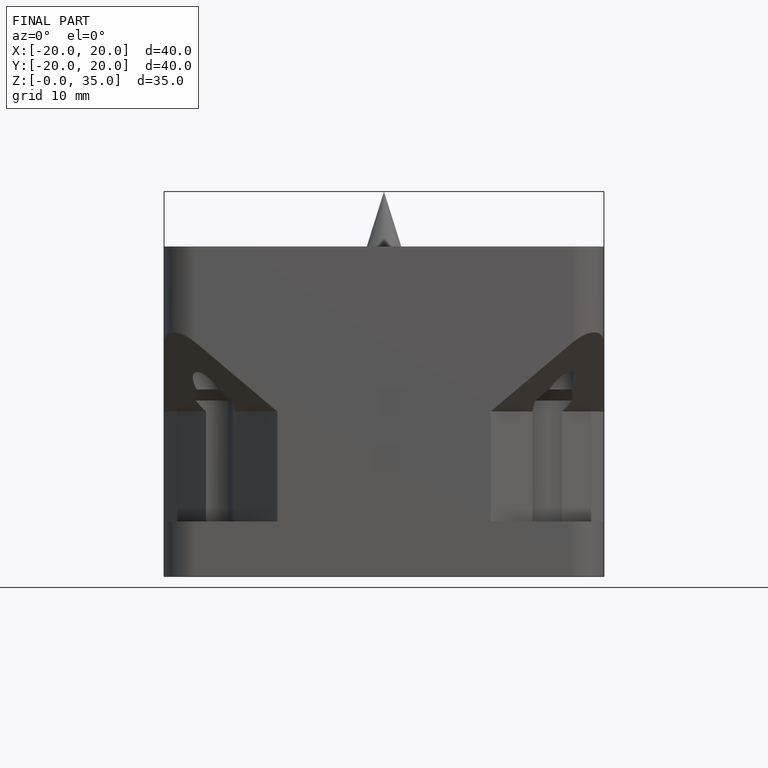
[diagram: finished part — front view with bounding-box wireframe]
